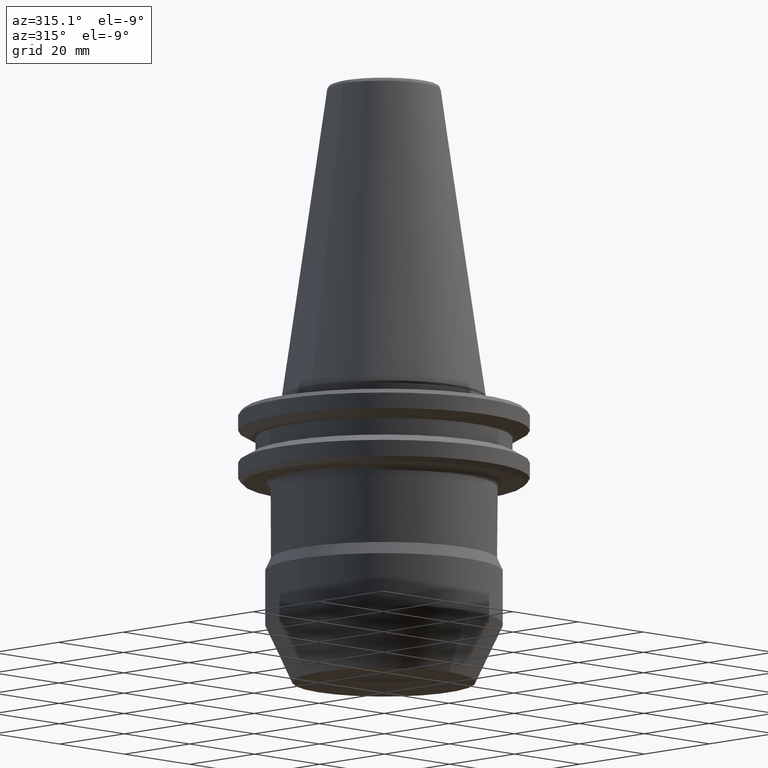
[diagram: clean part render]
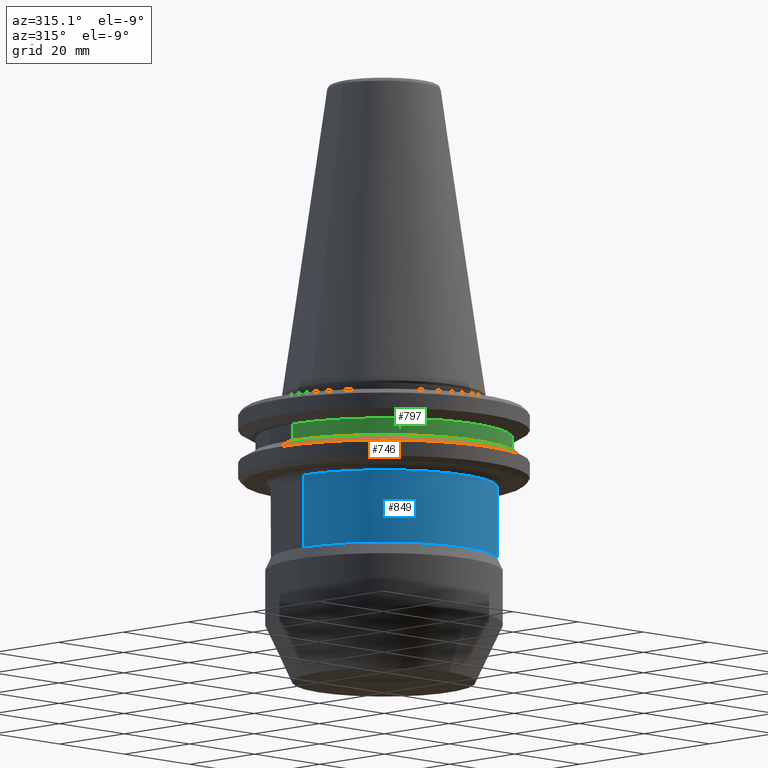
[diagram: same view with three faces highlighted in distinct colors, each labeled with its STEP entity id]
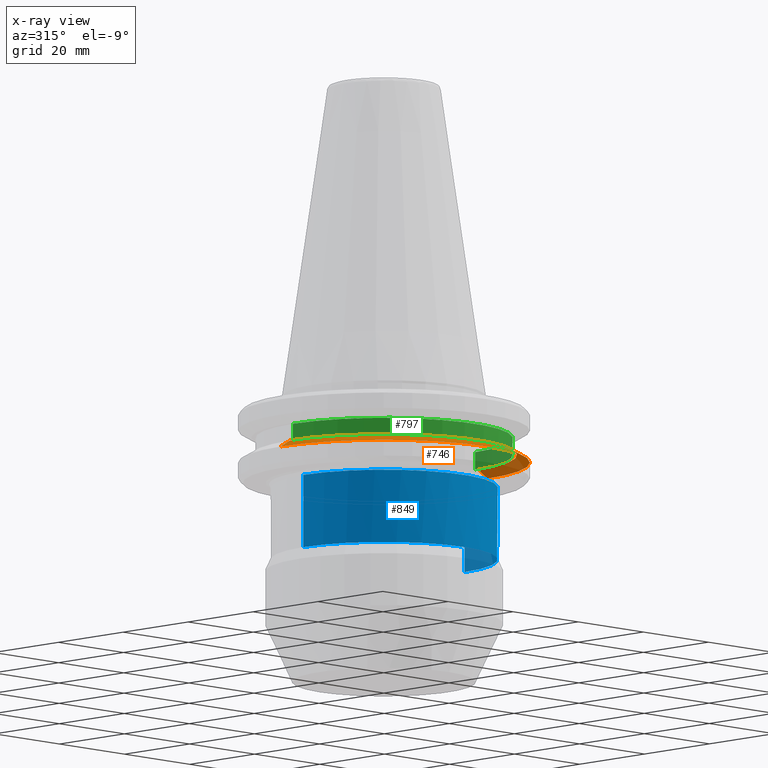
[diagram: x-ray of the same camera — body ghosted, the three highlighted faces saturated]
A machine part, auxiliary view with three faces highlighted in distinct colors.
The next image is the same camera in x-ray (body ghosted, the three faces saturated) — at least one of them is partly hidden behind the body in this view.
Their STEP definitions:

[orange] entity #746 — the highlighted conical surface has half-angle 60 deg.
#38 = CONICAL_SURFACE ( 'NONE', #1098, 31.75000000000000700, 1.047197551196604100 ) ;
#221 = DIRECTION ( 'NONE',  ( -0.0000000000000000000, -0.0000000000000000000, 1.000000000000000000 ) ) ;
#290 = DIRECTION ( 'NONE',  ( -1.000000000000000000, 0.0000000000000000000, 0.0000000000000000000 ) ) ;
#292 = DIRECTION ( 'NONE',  ( 0.0000000000000000000, 0.0000000000000000000, -1.000000000000000000 ) ) ;
#293 = EDGE_CURVE ( 'NONE', #1467, #1090, #304, .T. ) ;
#294 = DIRECTION ( 'NONE',  ( -0.8660254037844418200, 0.0000000000000000000, -0.4999999999999945000 ) ) ;
#303 = CARTESIAN_POINT ( 'NONE',  ( -31.75000000000000700, 0.0000000000000000000, -14.62183664205671700 ) ) ;
#304 = LINE ( 'NONE', #812, #1161 ) ;
#312 = AXIS2_PLACEMENT_3D ( 'NONE', #484, #292, #290 ) ;
#332 = CARTESIAN_POINT ( 'NONE',  ( 0.0000000000000000000, 0.0000000000000000000, -14.62183664205671700 ) ) ;
#335 = DIRECTION ( 'NONE',  ( -1.000000000000000000, 0.0000000000000000000, 0.0000000000000000000 ) ) ;
#401 = CARTESIAN_POINT ( 'NONE',  ( 0.0000000000000000000, 0.0000000000000000000, -14.62183664205671500 ) ) ;
#407 = ORIENTED_EDGE ( 'NONE', *, *, #518, .T. ) ;
#468 = EDGE_CURVE ( 'NONE', #1467, #757, #1469, .T. ) ;
#484 = CARTESIAN_POINT ( 'NONE',  ( 0.0000000000000000000, 0.0000000000000000000, -13.00000000000000700 ) ) ;
#518 = EDGE_CURVE ( 'NONE', #757, #1357, #554, .T. ) ;
#553 = ORIENTED_EDGE ( 'NONE', *, *, #1647, .T. ) ;
#554 = LINE ( 'NONE', #303, #1287 ) ;
#561 = ORIENTED_EDGE ( 'NONE', *, *, #293, .F. ) ;
#594 = CARTESIAN_POINT ( 'NONE',  ( 28.94089653438084400, 3.716245608910634800E-015, -13.00000000000000700 ) ) ;
#648 = AXIS2_PLACEMENT_3D ( 'NONE', #401, #221, #888 ) ;
#746 = ADVANCED_FACE ( 'NONE', ( #1650 ), #38, .T. ) ;
#751 = CARTESIAN_POINT ( 'NONE',  ( -31.75000000000000700, 3.888253587292847300E-015, -14.62183664205671500 ) ) ;
#757 = VERTEX_POINT ( 'NONE', #897 ) ;
#812 = CARTESIAN_POINT ( 'NONE',  ( 31.75000000000000700, 3.888253587292847300E-015, -14.62183664205671700 ) ) ;
#839 = CIRCLE ( 'NONE', #648, 31.75000000000000700 ) ;
#888 = DIRECTION ( 'NONE',  ( -1.000000000000000000, 0.0000000000000000000, 0.0000000000000000000 ) ) ;
#897 = CARTESIAN_POINT ( 'NONE',  ( -28.94089653438084400, 0.0000000000000000000, -13.00000000000000700 ) ) ;
#943 = ORIENTED_EDGE ( 'NONE', *, *, #468, .T. ) ;
#1032 = DIRECTION ( 'NONE',  ( 0.8660254037844418200, 1.060575238724910700E-016, -0.4999999999999945000 ) ) ;
#1090 = VERTEX_POINT ( 'NONE', #1646 ) ;
#1098 = AXIS2_PLACEMENT_3D ( 'NONE', #332, #1611, #335 ) ;
#1161 = VECTOR ( 'NONE', #1032, 1000.000000000000000 ) ;
#1287 = VECTOR ( 'NONE', #294, 1000.000000000000000 ) ;
#1357 = VERTEX_POINT ( 'NONE', #751 ) ;
#1446 = EDGE_LOOP ( 'NONE', ( #561, #943, #407, #553 ) ) ;
#1467 = VERTEX_POINT ( 'NONE', #594 ) ;
#1469 = CIRCLE ( 'NONE', #312, 28.94089653438084400 ) ;
#1611 = DIRECTION ( 'NONE',  ( 0.0000000000000000000, 0.0000000000000000000, -1.000000000000000000 ) ) ;
#1646 = CARTESIAN_POINT ( 'NONE',  ( 31.75000000000000700, 0.0000000000000000000, -14.62183664205671500 ) ) ;
#1647 = EDGE_CURVE ( 'NONE', #1357, #1090, #839, .T. ) ;
#1650 = FACE_OUTER_BOUND ( 'NONE', #1446, .T. ) ;

[blue] entity #849 — the highlighted cylindrical surface (partial cylindrical patch) has radius 24.75 mm, axis along (0, 0, 1).
#6 = ORIENTED_EDGE ( 'NONE', *, *, #1325, .T. ) ;
#44 = VERTEX_POINT ( 'NONE', #482 ) ;
#124 = EDGE_CURVE ( 'NONE', #1418, #44, #131, .T. ) ;
#131 = CIRCLE ( 'NONE', #1475, 24.75000000000000000 ) ;
#278 = ORIENTED_EDGE ( 'NONE', *, *, #1265, .T. ) ;
#340 = EDGE_LOOP ( 'NONE', ( #1057, #6, #1257, #278, #881 ) ) ;
#381 = VERTEX_POINT ( 'NONE', #1659 ) ;
#403 = VECTOR ( 'NONE', #1630, 1000.000000000000000 ) ;
#482 = CARTESIAN_POINT ( 'NONE',  ( -24.75000000000000000, 3.031000827889699300E-015, -20.10000000000000900 ) ) ;
#525 = CARTESIAN_POINT ( 'NONE',  ( 24.75000000000000000, 3.107541252836408700E-015, -35.99936634936307200 ) ) ;
#568 = DIRECTION ( 'NONE',  ( -0.0000000000000000000, -0.0000000000000000000, -1.000000000000000000 ) ) ;
#612 = DIRECTION ( 'NONE',  ( 0.0000000000000000000, 0.0000000000000000000, 1.000000000000000000 ) ) ;
#649 = CARTESIAN_POINT ( 'NONE',  ( -24.75000000000000000, 0.0000000000000000000, -35.99936634936307200 ) ) ;
#689 = CARTESIAN_POINT ( 'NONE',  ( 23.42562699267620700, -7.987646712267634900, -20.10000000000000900 ) ) ;
#692 = LINE ( 'NONE', #1656, #403 ) ;
#723 = DIRECTION ( 'NONE',  ( 1.000000000000000000, 0.0000000000000000000, 0.0000000000000000000 ) ) ;
#730 = VECTOR ( 'NONE', #1649, 1000.000000000000000 ) ;
#773 = DIRECTION ( 'NONE',  ( 1.000000000000000000, 0.0000000000000000000, 0.0000000000000000000 ) ) ;
#776 = DIRECTION ( 'NONE',  ( 0.0000000000000000000, 0.0000000000000000000, 1.000000000000000000 ) ) ;
#780 = CARTESIAN_POINT ( 'NONE',  ( 0.0000000000000000000, 0.0000000000000000000, -35.99936634936307200 ) ) ;
#795 = EDGE_CURVE ( 'NONE', #1514, #381, #1119, .T. ) ;
#849 = ADVANCED_FACE ( 'NONE', ( #1417 ), #1015, .T. ) ;
#881 = ORIENTED_EDGE ( 'NONE', *, *, #124, .T. ) ;
#910 = AXIS2_PLACEMENT_3D ( 'NONE', #935, #933, #925 ) ;
#924 = CARTESIAN_POINT ( 'NONE',  ( 0.0000000000000000000, 0.0000000000000000000, 82.95681253582424100 ) ) ;
#925 = DIRECTION ( 'NONE',  ( -1.000000000000000000, 0.0000000000000000000, 0.0000000000000000000 ) ) ;
#933 = DIRECTION ( 'NONE',  ( 0.0000000000000000000, 0.0000000000000000000, -1.000000000000000000 ) ) ;
#935 = CARTESIAN_POINT ( 'NONE',  ( 0.0000000000000000000, 0.0000000000000000000, -20.10000000000000900 ) ) ;
#959 = VERTEX_POINT ( 'NONE', #649 ) ;
#972 = CIRCLE ( 'NONE', #1267, 24.75000000000000000 ) ;
#1015 = CYLINDRICAL_SURFACE ( 'NONE', #1563, 24.75000000000000000 ) ;
#1057 = ORIENTED_EDGE ( 'NONE', *, *, #1095, .F. ) ;
#1095 = EDGE_CURVE ( 'NONE', #959, #44, #692, .T. ) ;
#1119 = LINE ( 'NONE', #1305, #730 ) ;
#1257 = ORIENTED_EDGE ( 'NONE', *, *, #795, .T. ) ;
#1265 = EDGE_CURVE ( 'NONE', #381, #1418, #1403, .T. ) ;
#1267 = AXIS2_PLACEMENT_3D ( 'NONE', #780, #776, #773 ) ;
#1277 = DIRECTION ( 'NONE',  ( 1.000000000000000000, 0.0000000000000000000, 0.0000000000000000000 ) ) ;
#1305 = CARTESIAN_POINT ( 'NONE',  ( 24.75000000000000000, 0.0000000000000000000, 82.95681253582424100 ) ) ;
#1325 = EDGE_CURVE ( 'NONE', #959, #1514, #972, .T. ) ;
#1403 = CIRCLE ( 'NONE', #910, 24.75000000000000000 ) ;
#1417 = FACE_OUTER_BOUND ( 'NONE', #340, .T. ) ;
#1418 = VERTEX_POINT ( 'NONE', #689 ) ;
#1475 = AXIS2_PLACEMENT_3D ( 'NONE', #1548, #568, #1277 ) ;
#1514 = VERTEX_POINT ( 'NONE', #525 ) ;
#1548 = CARTESIAN_POINT ( 'NONE',  ( 0.0000000000000000000, 0.0000000000000000000, -20.10000000000000900 ) ) ;
#1563 = AXIS2_PLACEMENT_3D ( 'NONE', #924, #612, #723 ) ;
#1630 = DIRECTION ( 'NONE',  ( 0.0000000000000000000, 0.0000000000000000000, 1.000000000000000000 ) ) ;
#1649 = DIRECTION ( 'NONE',  ( 0.0000000000000000000, 0.0000000000000000000, 1.000000000000000000 ) ) ;
#1656 = CARTESIAN_POINT ( 'NONE',  ( -24.75000000000000000, 3.031000827889699300E-015, 82.95681253582424100 ) ) ;
#1659 = CARTESIAN_POINT ( 'NONE',  ( 24.75000000000000000, 0.0000000000000000000, -20.10000000000000900 ) ) ;

[green] entity #797 — the highlighted cylindrical surface (partial cylindrical patch) has radius 28 mm, axis along (0, 0, 1).
#12 = CIRCLE ( 'NONE', #820, 28.00000000000000000 ) ;
#30 = EDGE_CURVE ( 'NONE', #1532, #698, #12, .T. ) ;
#68 = VERTEX_POINT ( 'NONE', #1293 ) ;
#333 = EDGE_CURVE ( 'NONE', #1468, #68, #1072, .T. ) ;
#428 = DIRECTION ( 'NONE',  ( 0.0000000000000000000, 0.0000000000000000000, 1.000000000000000000 ) ) ;
#434 = CARTESIAN_POINT ( 'NONE',  ( -28.00000000000000000, 3.429011037612589300E-015, 113.5216080541959500 ) ) ;
#443 = ORIENTED_EDGE ( 'NONE', *, *, #1570, .T. ) ;
#491 = DIRECTION ( 'NONE',  ( 1.000000000000000000, 0.0000000000000000000, 0.0000000000000000000 ) ) ;
#495 = DIRECTION ( 'NONE',  ( 0.0000000000000000000, 0.0000000000000000000, 1.000000000000000000 ) ) ;
#498 = CARTESIAN_POINT ( 'NONE',  ( 0.0000000000000000000, 0.0000000000000000000, -13.00000000000001100 ) ) ;
#504 = CARTESIAN_POINT ( 'NONE',  ( -28.00000000000000000, 3.429011037612594400E-015, -13.00000000000001100 ) ) ;
#508 = CARTESIAN_POINT ( 'NONE',  ( 28.00000000000000000, 0.0000000000000000000, -13.00000000000001100 ) ) ;
#588 = CARTESIAN_POINT ( 'NONE',  ( 28.00000000000000000, 0.0000000000000000000, -9.199999999999999300 ) ) ;
#677 = ORIENTED_EDGE ( 'NONE', *, *, #928, .F. ) ;
#698 = VERTEX_POINT ( 'NONE', #508 ) ;
#713 = LINE ( 'NONE', #434, #1544 ) ;
#775 = ORIENTED_EDGE ( 'NONE', *, *, #30, .T. ) ;
#797 = ADVANCED_FACE ( 'NONE', ( #865 ), #890, .T. ) ;
#820 = AXIS2_PLACEMENT_3D ( 'NONE', #498, #495, #491 ) ;
#865 = FACE_OUTER_BOUND ( 'NONE', #1113, .T. ) ;
#890 = CYLINDRICAL_SURFACE ( 'NONE', #1302, 28.00000000000000000 ) ;
#912 = DIRECTION ( 'NONE',  ( -0.0000000000000000000, -0.0000000000000000000, -1.000000000000000000 ) ) ;
#928 = EDGE_CURVE ( 'NONE', #1532, #68, #713, .T. ) ;
#964 = DIRECTION ( 'NONE',  ( 1.000000000000000000, 0.0000000000000000000, 0.0000000000000000000 ) ) ;
#1035 = CARTESIAN_POINT ( 'NONE',  ( 0.0000000000000000000, 0.0000000000000000000, 113.5216080541959500 ) ) ;
#1072 = CIRCLE ( 'NONE', #1197, 28.00000000000000000 ) ;
#1093 = CARTESIAN_POINT ( 'NONE',  ( 0.0000000000000000000, 0.0000000000000000000, -9.199999999999999300 ) ) ;
#1113 = EDGE_LOOP ( 'NONE', ( #677, #775, #443, #1533 ) ) ;
#1197 = AXIS2_PLACEMENT_3D ( 'NONE', #1093, #912, #964 ) ;
#1203 = LINE ( 'NONE', #1488, #1383 ) ;
#1293 = CARTESIAN_POINT ( 'NONE',  ( -28.00000000000000000, 3.429011037612594400E-015, -9.199999999999999300 ) ) ;
#1302 = AXIS2_PLACEMENT_3D ( 'NONE', #1035, #1524, #1588 ) ;
#1383 = VECTOR ( 'NONE', #428, 1000.000000000000000 ) ;
#1430 = DIRECTION ( 'NONE',  ( 0.0000000000000000000, 0.0000000000000000000, 1.000000000000000000 ) ) ;
#1468 = VERTEX_POINT ( 'NONE', #588 ) ;
#1488 = CARTESIAN_POINT ( 'NONE',  ( 28.00000000000000000, 0.0000000000000000000, 113.5216080541959500 ) ) ;
#1524 = DIRECTION ( 'NONE',  ( 0.0000000000000000000, 0.0000000000000000000, 1.000000000000000000 ) ) ;
#1532 = VERTEX_POINT ( 'NONE', #504 ) ;
#1533 = ORIENTED_EDGE ( 'NONE', *, *, #333, .T. ) ;
#1544 = VECTOR ( 'NONE', #1430, 1000.000000000000000 ) ;
#1570 = EDGE_CURVE ( 'NONE', #698, #1468, #1203, .T. ) ;
#1588 = DIRECTION ( 'NONE',  ( 1.000000000000000000, 0.0000000000000000000, 0.0000000000000000000 ) ) ;